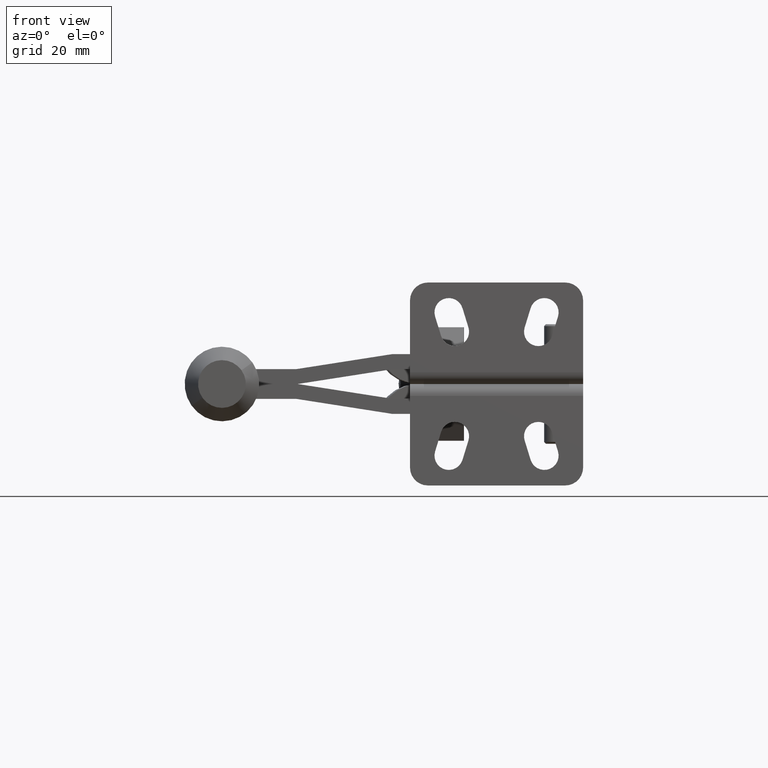
[diagram: clean part render]
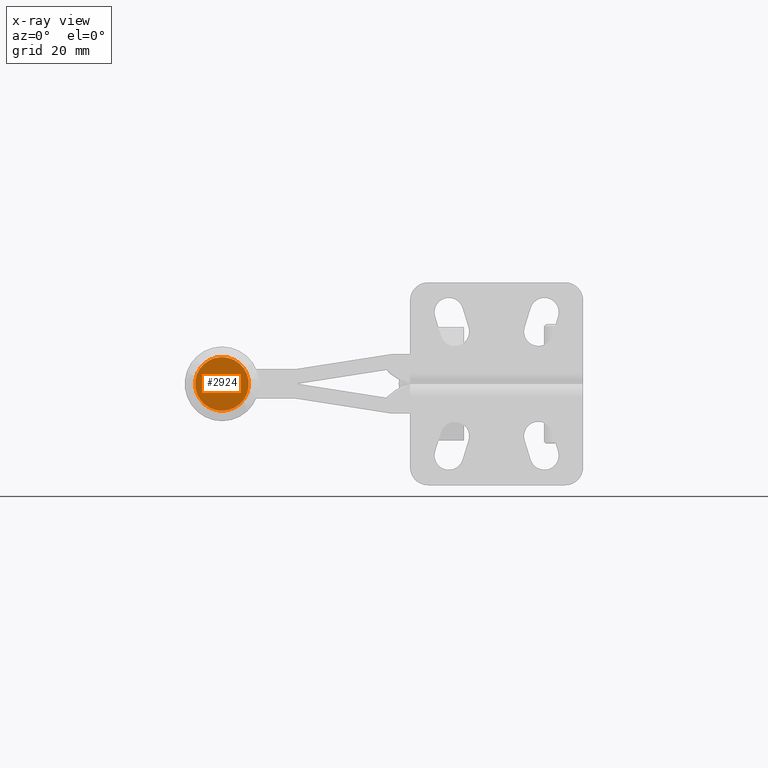
[diagram: x-ray — body ghosted, one internal face saturated and labeled with its STEP entity id]
A machine part, front view, then the same camera in x-ray: the body is ghosted and one INTERNAL B-rep face — a face not visible from any outside direction — is saturated and labeled: STEP entity #2924.
In plain terms, the highlighted planar face has unit normal (0, 1, 0).
Its self-contained STEP definition (entity closure, byte-faithful):
#78 = EDGE_LOOP ( 'NONE', ( #1434, #5103 ) ) ;
#1361 = EDGE_CURVE ( 'NONE', #9249, #2762, #9690, .T. ) ;
#1434 = ORIENTED_EDGE ( 'NONE', *, *, #7861, .F. ) ;
#1909 = DIRECTION ( 'NONE',  ( 0.0000000000000000000, 1.000000000000000000, 0.0000000000000000000 ) ) ;
#2207 = CIRCLE ( 'NONE', #5434, 4.499999999999947600 ) ;
#2548 = PLANE ( 'NONE',  #7363 ) ;
#2762 = VERTEX_POINT ( 'NONE', #4502 ) ;
#2815 = CARTESIAN_POINT ( 'NONE',  ( -60.49999999999976600, 8.834818526606197200, 4.864565760803837200E-014 ) ) ;
#2924 = ADVANCED_FACE ( 'NONE', ( #8071 ), #2548, .F. ) ;
#3587 = DIRECTION ( 'NONE',  ( -0.8165502800494152100, 0.0000000000000000000, -0.5772743196706584500 ) ) ;
#3951 = CARTESIAN_POINT ( 'NONE',  ( -56.82552373977743800, 8.834818526606197200, 2.597734438517981900 ) ) ;
#4502 = CARTESIAN_POINT ( 'NONE',  ( -64.17447626022209300, 8.834818526606197200, -2.597734438517883800 ) ) ;
#5103 = ORIENTED_EDGE ( 'NONE', *, *, #1361, .F. ) ;
#5434 = AXIS2_PLACEMENT_3D ( 'NONE', #2815, #7968, #3587 ) ;
#5531 = DIRECTION ( 'NONE',  ( 0.0000000000000000000, 1.000000000000000000, 0.0000000000000000000 ) ) ;
#5994 = DIRECTION ( 'NONE',  ( -0.8165502800494152100, 0.0000000000000000000, -0.5772743196706584500 ) ) ;
#7363 = AXIS2_PLACEMENT_3D ( 'NONE', #7701, #5531, #8446 ) ;
#7701 = CARTESIAN_POINT ( 'NONE',  ( -62.37614153892940300, 8.834818526606197200, 2.653788410160651300 ) ) ;
#7861 = EDGE_CURVE ( 'NONE', #2762, #9249, #2207, .T. ) ;
#7968 = DIRECTION ( 'NONE',  ( 0.0000000000000000000, 1.000000000000000000, 0.0000000000000000000 ) ) ;
#8071 = FACE_OUTER_BOUND ( 'NONE', #78, .T. ) ;
#8247 = CARTESIAN_POINT ( 'NONE',  ( -60.49999999999976600, 8.834818526606197200, 4.864565760803837200E-014 ) ) ;
#8446 = DIRECTION ( 'NONE',  ( -0.8165502800494154300, 0.0000000000000000000, -0.5772743196706581200 ) ) ;
#8876 = AXIS2_PLACEMENT_3D ( 'NONE', #8247, #1909, #5994 ) ;
#9249 = VERTEX_POINT ( 'NONE', #3951 ) ;
#9690 = CIRCLE ( 'NONE', #8876, 4.499999999999947600 ) ;